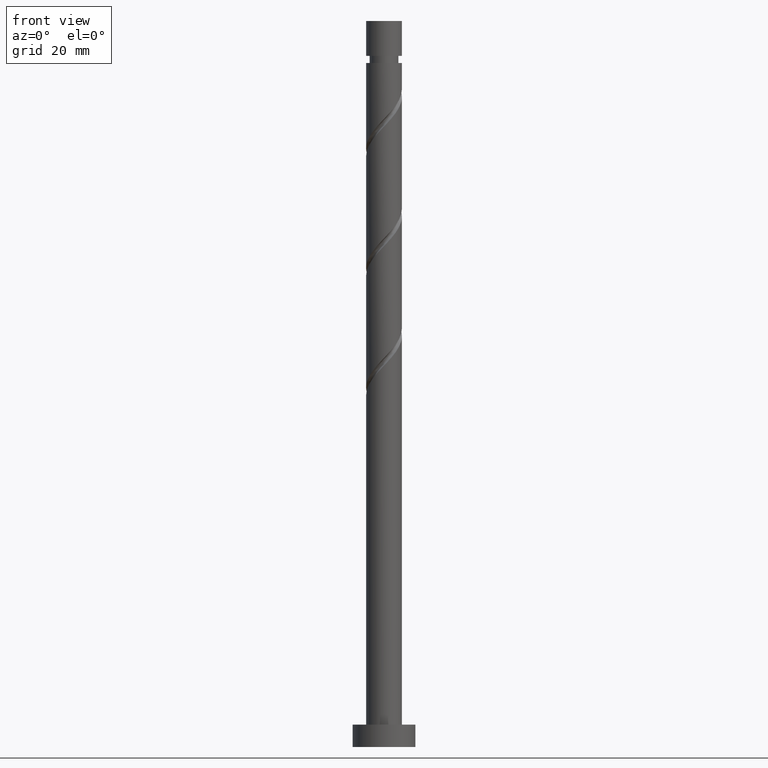
[diagram: clean part render]
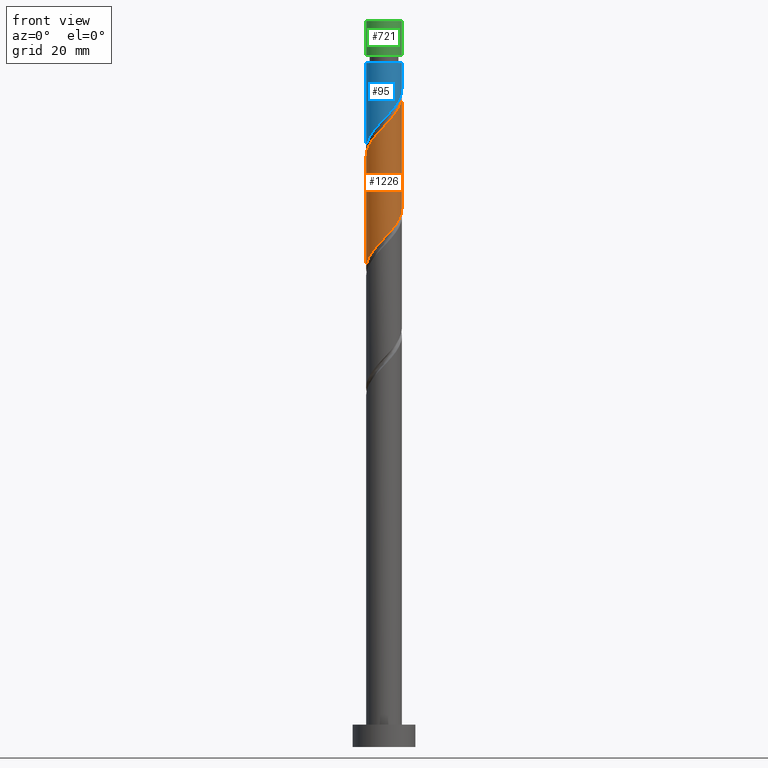
[diagram: same view with three faces highlighted in distinct colors, each labeled with its STEP entity id]
A machine part, front view with three faces highlighted in distinct colors.
Their STEP definitions:

[orange] entity #1226 — the highlighted cylindrical surface (edge-blend (fillet) strip) has radius 4 mm, axis along (-0, -0, -1).
#16 =( BOUNDED_CURVE ( )  B_SPLINE_CURVE ( 2, ( #1486, #857, #1578, #162, #841, #230, #770, #336, #1616, #1265, #988, #1495, #1399, #1251, #239, #1234, #488, #1636, #204, #737, #612, #999, #345, #871, #497 ),
 .UNSPECIFIED., .F., .T. ) 
 B_SPLINE_CURVE_WITH_KNOTS ( ( 3, 2, 2, 2, 2, 2, 2, 2, 2, 2, 2, 2, 3 ),
 ( 0.5545252162417513286, 0.5568181818181818787, 0.5681818181818181213, 0.5795454545454545858, 0.5909090909090908283, 0.6022727272727272929, 0.6136363636363636465, 0.6250000000000000000, 0.6363636363636363535, 0.6477272727272727071, 0.6590909090909091717, 0.6704545454545454142, 0.6795252162417515507 ),
 .UNSPECIFIED. ) 
 CURVE ( )  GEOMETRIC_REPRESENTATION_ITEM ( )  RATIONAL_B_SPLINE_CURVE ( ( 0.9061101570135622341, 0.9072237824201443424, 0.9090909090909219392, 0.8998376744372241776, 0.9090909090909219392, 0.8998376744372241776, 0.9090909090909219392, 0.8998376744372241776, 0.9090909090909219392, 0.8998376744372241776, 0.9090909090909219392, 0.8998376744372241776, 0.9090909090909219392, 0.8998376744372241776, 0.9090909090909219392, 0.8998376744372241776, 0.9090909090909219392, 0.8998376744372241776, 0.9090909090909219392, 0.8998376744372241776, 0.9090909090909219392, 0.8998376744372241776, 0.9090909090909219392, 0.9017048011080015524, 0.9061101570135624561 ) ) 
 REPRESENTATION_ITEM ( '' )  );
#55 = VERTEX_POINT ( 'NONE', #519 ) ;
#91 = AXIS2_PLACEMENT_3D ( 'NONE', #833, #313, #467 ) ;
#143 = CARTESIAN_POINT ( 'NONE',  ( 2.441275768804707980, -3.168623142730448095, 116.2597196818963425 ) ) ;
#157 = CARTESIAN_POINT ( 'NONE',  ( -4.000000000000000888, 3.769118817281110637E-15, 106.8061438581669051 ) ) ;
#162 = CARTESIAN_POINT ( 'NONE',  ( -3.960310248029106805, -0.8041752946599106666, 132.6233560455327165 ) ) ;
#204 = CARTESIAN_POINT ( 'NONE',  ( 2.788941361696814614, -2.867369191613936330, 141.7142651364418100 ) ) ;
#207 = DIRECTION ( 'NONE',  ( -0.000000000000000000, -0.000000000000000000, -1.000000000000000000 ) ) ;
#221 = VERTEX_POINT ( 'NONE', #1068 ) ;
#226 =( BOUNDED_CURVE ( )  B_SPLINE_CURVE ( 2, ( #827, #1583, #290, #1438, #282, #273, #836, #1208, #143, #957, #813, #1189, #1573, #1332, #1308, #703, #308, #1052, #673, #1182, #966, #1238, #1372, #1340, #743 ),
 .UNSPECIFIED., .F., .T. ) 
 B_SPLINE_CURVE_WITH_KNOTS ( ( 3, 2, 2, 2, 2, 2, 2, 2, 2, 2, 2, 2, 3 ),
 ( 0.5545252162417512176, 0.5568181818181817677, 0.5681818181818182323, 0.5795454545454545858, 0.5909090909090909394, 0.6022727272727272929, 0.6136363636363636465, 0.6250000000000000000, 0.6363636363636363535, 0.6477272727272727071, 0.6590909090909090606, 0.6704545454545454142, 0.6795252162417514397 ),
 .UNSPECIFIED. ) 
 CURVE ( )  GEOMETRIC_REPRESENTATION_ITEM ( )  RATIONAL_B_SPLINE_CURVE ( ( 0.9061101570135567940, 0.9072237824201390133, 0.9090909090909164991, 0.8998376744372188485, 0.9090909090909164991, 0.8998376744372188485, 0.9090909090909164991, 0.8998376744372188485, 0.9090909090909164991, 0.8998376744372188485, 0.9090909090909164991, 0.8998376744372188485, 0.9090909090909164991, 0.8998376744372188485, 0.9090909090909164991, 0.8998376744372188485, 0.9090909090909164991, 0.8998376744372188485, 0.9090909090909164991, 0.8998376744372188485, 0.9090909090909164991, 0.8998376744372188485, 0.9090909090909164991, 0.9017048011079962233, 0.9061101570135570160 ) ) 
 REPRESENTATION_ITEM ( '' )  );
#230 = CARTESIAN_POINT ( 'NONE',  ( -3.573327494404169524, -1.887348876843109702, 133.8354772576538778 ) ) ;
#239 = CARTESIAN_POINT ( 'NONE',  ( 0.7959899496852965717, -3.920000000000005702, 139.2900227121993737 ) ) ;
#273 = CARTESIAN_POINT ( 'NONE',  ( 3.573327494404164639, -1.887348876843107703, 118.0779015000781413 ) ) ;
#282 = CARTESIAN_POINT ( 'NONE',  ( 3.766818871216632836, -1.345762085751509129, 118.6839621061387362 ) ) ;
#290 = CARTESIAN_POINT ( 'NONE',  ( 3.993381233129879693, -0.2300137536889547418, 119.8960833182599686 ) ) ;
#308 = CARTESIAN_POINT ( 'NONE',  ( -1.868138386609203616, -3.536956172823910727, 111.4112348334114841 ) ) ;
#313 = DIRECTION ( 'NONE',  ( -0.000000000000000000, -0.000000000000000000, -1.000000000000000000 ) ) ;
#336 = CARTESIAN_POINT ( 'NONE',  ( -2.896854998579486917, -2.817620677520442651, 135.0475984697750960 ) ) ;
#344 = FACE_OUTER_BOUND ( 'NONE', #1050, .T. ) ;
#345 = CARTESIAN_POINT ( 'NONE',  ( 3.896423597087605994, -0.9043689247530174447, 144.1385075606841326 ) ) ;
#467 = DIRECTION ( 'NONE',  ( -1.000000000000000000, 0.000000000000000000, 0.000000000000000000 ) ) ;
#488 = CARTESIAN_POINT ( 'NONE',  ( 1.868138386609204726, -3.536956172823916056, 140.5021439243205919 ) ) ;
#497 = CARTESIAN_POINT ( 'NONE',  ( 4.000000000000005329, 2.557616340297881178E-15, 145.1072348995651282 ) ) ;
#519 = CARTESIAN_POINT ( 'NONE',  ( -4.000000000000005329, -2.752055009443334096E-15, 131.7739015662318138 ) ) ;
#536 = VERTEX_POINT ( 'NONE', #157 ) ;
#598 = EDGE_CURVE ( 'NONE', #1118, #536, #226, .T. ) ;
#612 = CARTESIAN_POINT ( 'NONE',  ( 3.483800894132681236, -1.965485011400590842, 142.9263863485630282 ) ) ;
#673 = CARTESIAN_POINT ( 'NONE',  ( -2.788941361696812393, -2.867369191613931001, 110.1991136212902660 ) ) ;
#703 = CARTESIAN_POINT ( 'NONE',  ( -1.359600862145591949, -3.805553922997103822, 112.0172954394721074 ) ) ;
#737 = CARTESIAN_POINT ( 'NONE',  ( 3.201206812320812833, -2.466379960577149699, 142.3203257425023764 ) ) ;
#743 = CARTESIAN_POINT ( 'NONE',  ( -4.000000000000000888, 3.769118817281110637E-15, 106.8061438581668909 ) ) ;
#746 = EDGE_CURVE ( 'NONE', #221, #1118, #1499, .T. ) ;
#770 = CARTESIAN_POINT ( 'NONE',  ( -3.235091246491827999, -2.352484777181776288, 134.4415378637145011 ) ) ;
#813 = CARTESIAN_POINT ( 'NONE',  ( 1.449682647155072557, -3.728058505782528620, 115.0475984697751244 ) ) ;
#827 = CARTESIAN_POINT ( 'NONE',  ( 4.000000000000000888, -4.606700776676913527E-15, 120.1394771915002480 ) ) ;
#833 = CARTESIAN_POINT ( 'NONE',  ( 0.000000000000000000, 0.000000000000000000, 162.0000000000000000 ) ) ;
#836 = CARTESIAN_POINT ( 'NONE',  ( 3.235091246491824002, -2.352484777181773179, 117.4718408940175181 ) ) ;
#841 = CARTESIAN_POINT ( 'NONE',  ( -3.766818871216639053, -1.345762085751509796, 133.2294166515933114 ) ) ;
#857 = CARTESIAN_POINT ( 'NONE',  ( -4.000000000000006217, -0.1151021060952867048, 131.8959995709500106 ) ) ;
#871 = CARTESIAN_POINT ( 'NONE',  ( 4.000000000000008882, -0.4581157095404841395, 144.6212749465938430 ) ) ;
#957 = CARTESIAN_POINT ( 'NONE',  ( 1.985696539029934149, -3.519625607940456202, 115.6536590758357192 ) ) ;
#966 = CARTESIAN_POINT ( 'NONE',  ( -3.483800894132676351, -1.965485011400587068, 108.9869924091690478 ) ) ;
#988 = CARTESIAN_POINT ( 'NONE',  ( -1.449682647155075665, -3.728058505782533505, 136.8657802879569658 ) ) ;
#999 = CARTESIAN_POINT ( 'NONE',  ( 3.766394975944548751, -1.464590062224029987, 143.5324469546236514 ) ) ;
#1021 = ORIENTED_EDGE ( 'NONE', *, *, #598, .F. ) ;
#1023 = EDGE_CURVE ( 'NONE', #55, #536, #1369, .T. ) ;
#1042 = ORIENTED_EDGE ( 'NONE', *, *, #746, .F. ) ;
#1050 = EDGE_LOOP ( 'NONE', ( #1042, #1471, #1316, #1021 ) ) ;
#1052 = CARTESIAN_POINT ( 'NONE',  ( -2.376675911072814618, -3.268358422650716744, 110.8051742273508609 ) ) ;
#1068 = CARTESIAN_POINT ( 'NONE',  ( 4.000000000000005329, 2.557616340297881178E-15, 145.1072348995651282 ) ) ;
#1094 = DIRECTION ( 'NONE',  ( -0.000000000000000000, -0.000000000000000000, -1.000000000000000000 ) ) ;
#1095 = VECTOR ( 'NONE', #207, 1000.000000000000000 ) ;
#1118 = VERTEX_POINT ( 'NONE', #1506 ) ;
#1182 = CARTESIAN_POINT ( 'NONE',  ( -3.201206812320810169, -2.466379960577145702, 109.5930530152296569 ) ) ;
#1189 = CARTESIAN_POINT ( 'NONE',  ( 0.9136687552802118528, -3.936491403624601926, 114.4415378637145579 ) ) ;
#1208 = CARTESIAN_POINT ( 'NONE',  ( 2.896854998579484253, -2.817620677520439987, 116.8657802879569516 ) ) ;
#1218 = VECTOR ( 'NONE', #1094, 1000.000000000000000 ) ;
#1226 = ADVANCED_FACE ( 'NONE', ( #344 ), #1395, .T. ) ;
#1234 = CARTESIAN_POINT ( 'NONE',  ( 1.359600862145592615, -3.805553922997109595, 139.8960833182599401 ) ) ;
#1238 = CARTESIAN_POINT ( 'NONE',  ( -3.766394975944543422, -1.464590062224028433, 108.3809318031084388 ) ) ;
#1245 = CARTESIAN_POINT ( 'NONE',  ( 4.000000000000000000, 4.898587196589412829E-16, 162.0000000000000000 ) ) ;
#1251 = CARTESIAN_POINT ( 'NONE',  ( 0.2323790372250007230, -4.034446077002900921, 138.6839621061386936 ) ) ;
#1258 = EDGE_CURVE ( 'NONE', #55, #221, #16, .T. ) ;
#1265 = CARTESIAN_POINT ( 'NONE',  ( -1.985696539029938146, -3.519625607940459311, 136.2597196818963425 ) ) ;
#1308 = CARTESIAN_POINT ( 'NONE',  ( -0.7959899496852971268, -3.919999999999999929, 112.6233560455326881 ) ) ;
#1316 = ORIENTED_EDGE ( 'NONE', *, *, #1023, .T. ) ;
#1332 = CARTESIAN_POINT ( 'NONE',  ( -0.2323790372250022218, -4.034446077002896480, 113.2294166515933256 ) ) ;
#1340 = CARTESIAN_POINT ( 'NONE',  ( -4.000000000000002665, -0.4581157095404838620, 107.2921038111382330 ) ) ;
#1369 = LINE ( 'NONE', #1619, #1095 ) ;
#1372 = CARTESIAN_POINT ( 'NONE',  ( -3.896423597087600665, -0.9043689247530153352, 107.7748711970478439 ) ) ;
#1395 = CYLINDRICAL_SURFACE ( 'NONE', #91, 4.000000000000000000 ) ;
#1399 = CARTESIAN_POINT ( 'NONE',  ( -0.3406448590276058841, -3.985468740313755642, 138.0779015000781271 ) ) ;
#1438 = CARTESIAN_POINT ( 'NONE',  ( 3.960310248029102365, -0.8041752946599112217, 119.2900227121993595 ) ) ;
#1471 = ORIENTED_EDGE ( 'NONE', *, *, #1258, .F. ) ;
#1486 = CARTESIAN_POINT ( 'NONE',  ( -4.000000000000005329, -2.752055009443334096E-15, 131.7739015662318138 ) ) ;
#1495 = CARTESIAN_POINT ( 'NONE',  ( -0.9136687552802127410, -3.936491403624608143, 137.4718408940175038 ) ) ;
#1499 = LINE ( 'NONE', #1245, #1218 ) ;
#1506 = CARTESIAN_POINT ( 'NONE',  ( 4.000000000000000888, -4.606700776676913527E-15, 120.1394771915002480 ) ) ;
#1573 = CARTESIAN_POINT ( 'NONE',  ( 0.3406448590276037192, -3.985468740313750313, 113.8354772576538920 ) ) ;
#1578 = CARTESIAN_POINT ( 'NONE',  ( -3.993381233129885466, -0.2300137536889534373, 132.0172954394720932 ) ) ;
#1583 = CARTESIAN_POINT ( 'NONE',  ( 4.000000000000000000, -0.1151021060952871489, 120.0173791867820370 ) ) ;
#1616 = CARTESIAN_POINT ( 'NONE',  ( -2.441275768804712420, -3.168623142730450759, 135.6536590758357761 ) ) ;
#1619 = CARTESIAN_POINT ( 'NONE',  ( -4.000000000000000000, 0.000000000000000000, 162.0000000000000000 ) ) ;
#1636 = CARTESIAN_POINT ( 'NONE',  ( 2.376675911072817282, -3.268358422650720740, 141.1082045303811299 ) ) ;

[blue] entity #95 — the highlighted cylindrical surface (edge-blend (fillet) strip) has radius 4 mm, axis along (-0, -0, -1).
#7 = CARTESIAN_POINT ( 'NONE',  ( -3.483800894132676351, -1.965485011400587068, 135.6536590758357477 ) ) ;
#12 = VECTOR ( 'NONE', #80, 1000.000000000000000 ) ;
#50 = CARTESIAN_POINT ( 'NONE',  ( 0.000000000000000000, 0.000000000000000000, 152.6233560455327165 ) ) ;
#74 = DIRECTION ( 'NONE',  ( -0.000000000000000000, -0.000000000000000000, -1.000000000000000000 ) ) ;
#80 = DIRECTION ( 'NONE',  ( -0.000000000000000000, -0.000000000000000000, -1.000000000000000000 ) ) ;
#95 = ADVANCED_FACE ( 'NONE', ( #367 ), #1432, .T. ) ;
#127 = CARTESIAN_POINT ( 'NONE',  ( 0.000000000000000000, 0.000000000000000000, 162.0000000000000000 ) ) ;
#130 = VERTEX_POINT ( 'NONE', #1413 ) ;
#165 = CARTESIAN_POINT ( 'NONE',  ( -4.000000000000000888, -0.4581157095404921331, 133.9587704778048760 ) ) ;
#186 = CARTESIAN_POINT ( 'NONE',  ( -0.7959899496852971268, -3.919999999999999929, 139.2900227121993169 ) ) ;
#218 = ORIENTED_EDGE ( 'NONE', *, *, #1626, .T. ) ;
#250 = CARTESIAN_POINT ( 'NONE',  ( -3.201206812320810169, -2.466379960577145702, 136.2597196818963141 ) ) ;
#252 = CARTESIAN_POINT ( 'NONE',  ( -3.766394975944543422, -1.464590062224028433, 135.0475984697751244 ) ) ;
#264 = CARTESIAN_POINT ( 'NONE',  ( 3.766818871216632836, -1.345762085751509129, 145.3506287728054076 ) ) ;
#279 = CARTESIAN_POINT ( 'NONE',  ( 0.9136687552802118528, -3.936491403624601926, 141.1082045303811867 ) ) ;
#287 = EDGE_CURVE ( 'NONE', #347, #1529, #632, .T. ) ;
#304 = ORIENTED_EDGE ( 'NONE', *, *, #1659, .F. ) ;
#347 = VERTEX_POINT ( 'NONE', #1465 ) ;
#367 = FACE_OUTER_BOUND ( 'NONE', #1283, .T. ) ;
#438 = AXIS2_PLACEMENT_3D ( 'NONE', #127, #1273, #646 ) ;
#442 = EDGE_CURVE ( 'NONE', #347, #130, #1343, .T. ) ;
#475 = CARTESIAN_POINT ( 'NONE',  ( 4.000000000000000000, 9.572365250237742804E-16, 146.8061438581669051 ) ) ;
#514 = ORIENTED_EDGE ( 'NONE', *, *, #442, .F. ) ;
#543 = CARTESIAN_POINT ( 'NONE',  ( 2.896854998579484253, -2.817620677520439987, 143.5324469546236230 ) ) ;
#570 = LINE ( 'NONE', #1500, #12 ) ;
#597 = CARTESIAN_POINT ( 'NONE',  ( -2.376675911072814618, -3.268358422650716744, 137.4718408940175038 ) ) ;
#632 = CIRCLE ( 'NONE', #1059, 3.999999999999993339 ) ;
#646 = DIRECTION ( 'NONE',  ( -1.000000000000000000, 0.000000000000000000, 0.000000000000000000 ) ) ;
#700 = DIRECTION ( 'NONE',  ( -0.000000000000000000, -0.000000000000000000, -1.000000000000000000 ) ) ;
#717 = CARTESIAN_POINT ( 'NONE',  ( -1.359600862145591949, -3.805553922997103822, 138.6839621061386936 ) ) ;
#752 = ORIENTED_EDGE ( 'NONE', *, *, #287, .T. ) ;
#807 =( BOUNDED_CURVE ( )  B_SPLINE_CURVE ( 2, ( #475, #1375, #1044, #1153, #264, #1349, #1228, #543, #1060, #1028, #1562, #279, #1261, #969, #186, #717, #1483, #597, #1106, #250, #7, #252, #1581, #165, #1129 ),
 .UNSPECIFIED., .F., .T. ) 
 B_SPLINE_CURVE_WITH_KNOTS ( ( 3, 2, 2, 2, 2, 2, 2, 2, 2, 2, 2, 2, 3 ),
 ( 0.3045252162417514397, 0.3068181818181818232, 0.3181818181818181768, 0.3295454545454545303, 0.3409090909090908839, 0.3522727272727272929, 0.3636363636363636465, 0.3750000000000000000, 0.3863636363636363535, 0.3977272727272727071, 0.4090909090909091161, 0.4204545454545454697, 0.4295252162417513286 ),
 .UNSPECIFIED. ) 
 CURVE ( )  GEOMETRIC_REPRESENTATION_ITEM ( )  RATIONAL_B_SPLINE_CURVE ( ( 0.9061101570135570160, 0.9072237824201391243, 0.9090909090909164991, 0.8998376744372188485, 0.9090909090909164991, 0.8998376744372188485, 0.9090909090909164991, 0.8998376744372188485, 0.9090909090909164991, 0.8998376744372188485, 0.9090909090909164991, 0.8998376744372188485, 0.9090909090909164991, 0.8998376744372188485, 0.9090909090909164991, 0.8998376744372188485, 0.9090909090909164991, 0.8998376744372188485, 0.9090909090909164991, 0.8998376744372188485, 0.9090909090909164991, 0.8998376744372188485, 0.9090909090909164991, 0.9017048011079963343, 0.9061101570135567940 ) ) 
 REPRESENTATION_ITEM ( '' )  );
#809 = DIRECTION ( 'NONE',  ( -1.000000000000000000, 0.000000000000000000, 0.000000000000000000 ) ) ;
#969 = CARTESIAN_POINT ( 'NONE',  ( -0.2323790372250022218, -4.034446077002896480, 139.8960833182599117 ) ) ;
#978 = CARTESIAN_POINT ( 'NONE',  ( -4.000000000000000000, -1.824732125826569623E-15, 133.4728105248335908 ) ) ;
#997 = CARTESIAN_POINT ( 'NONE',  ( 4.000000000000000000, 4.898587196589412829E-16, 162.0000000000000000 ) ) ;
#1028 = CARTESIAN_POINT ( 'NONE',  ( 1.985696539029934149, -3.519625607940456202, 142.3203257425024049 ) ) ;
#1044 = CARTESIAN_POINT ( 'NONE',  ( 3.993381233129879693, -0.2300137536889547418, 146.5627499849265973 ) ) ;
#1059 = AXIS2_PLACEMENT_3D ( 'NONE', #50, #700, #809 ) ;
#1060 = CARTESIAN_POINT ( 'NONE',  ( 2.441275768804707980, -3.168623142730448095, 142.9263863485629997 ) ) ;
#1106 = CARTESIAN_POINT ( 'NONE',  ( -2.788941361696812393, -2.867369191613931001, 136.8657802879569658 ) ) ;
#1129 = CARTESIAN_POINT ( 'NONE',  ( -4.000000000000000000, -1.824732125826569623E-15, 133.4728105248335908 ) ) ;
#1153 = CARTESIAN_POINT ( 'NONE',  ( 3.960310248029102365, -0.8041752946599112217, 145.9566893788660877 ) ) ;
#1228 = CARTESIAN_POINT ( 'NONE',  ( 3.235091246491824002, -2.352484777181773179, 144.1385075606842179 ) ) ;
#1261 = CARTESIAN_POINT ( 'NONE',  ( 0.3406448590276037192, -3.985468740313750313, 140.5021439243205634 ) ) ;
#1273 = DIRECTION ( 'NONE',  ( -0.000000000000000000, -0.000000000000000000, -1.000000000000000000 ) ) ;
#1283 = EDGE_LOOP ( 'NONE', ( #514, #752, #218, #304 ) ) ;
#1343 = LINE ( 'NONE', #997, #1350 ) ;
#1349 = CARTESIAN_POINT ( 'NONE',  ( 3.573327494404164639, -1.887348876843107703, 144.7445681667448696 ) ) ;
#1350 = VECTOR ( 'NONE', #74, 1000.000000000000000 ) ;
#1375 = CARTESIAN_POINT ( 'NONE',  ( 4.000000000000000000, -0.1151021060952955033, 146.6840458534485947 ) ) ;
#1413 = CARTESIAN_POINT ( 'NONE',  ( 4.000000000000000000, 9.572365250237742804E-16, 146.8061438581669051 ) ) ;
#1432 = CYLINDRICAL_SURFACE ( 'NONE', #438, 4.000000000000000000 ) ;
#1465 = CARTESIAN_POINT ( 'NONE',  ( 3.999999999999993339, 4.898587196589407898E-16, 152.6233560455327165 ) ) ;
#1483 = CARTESIAN_POINT ( 'NONE',  ( -1.868138386609203616, -3.536956172823910727, 138.0779015000781271 ) ) ;
#1500 = CARTESIAN_POINT ( 'NONE',  ( -4.000000000000000000, 0.000000000000000000, 162.0000000000000000 ) ) ;
#1529 = VERTEX_POINT ( 'NONE', #1593 ) ;
#1562 = CARTESIAN_POINT ( 'NONE',  ( 1.449682647155072557, -3.728058505782528620, 141.7142651364418100 ) ) ;
#1581 = CARTESIAN_POINT ( 'NONE',  ( -3.896423597087600665, -0.9043689247530153352, 134.4415378637145295 ) ) ;
#1593 = CARTESIAN_POINT ( 'NONE',  ( -3.999999999999993339, 0.000000000000000000, 152.6233560455327165 ) ) ;
#1626 = EDGE_CURVE ( 'NONE', #1529, #1655, #570, .T. ) ;
#1655 = VERTEX_POINT ( 'NONE', #978 ) ;
#1659 = EDGE_CURVE ( 'NONE', #130, #1655, #807, .T. ) ;

[green] entity #721 — the highlighted cylindrical surface (edge-blend (fillet) strip) has radius 4 mm, axis along (-0, -0, -1).
#18 = ORIENTED_EDGE ( 'NONE', *, *, #1187, .F. ) ;
#54 = CARTESIAN_POINT ( 'NONE',  ( -4.000000000000000000, 0.000000000000000000, 162.0000000000000000 ) ) ;
#206 = CARTESIAN_POINT ( 'NONE',  ( 0.000000000000000000, 0.000000000000000000, 154.2233560455326824 ) ) ;
#216 = DIRECTION ( 'NONE',  ( -1.000000000000000000, 0.000000000000000000, 0.000000000000000000 ) ) ;
#241 = VERTEX_POINT ( 'NONE', #1335 ) ;
#373 = DIRECTION ( 'NONE',  ( 1.000000000000000000, 0.000000000000000000, 0.000000000000000000 ) ) ;
#381 = CARTESIAN_POINT ( 'NONE',  ( 0.000000000000000000, 0.000000000000000000, 162.0000000000000000 ) ) ;
#411 = CARTESIAN_POINT ( 'NONE',  ( -4.000000000000000000, 0.000000000000000000, 162.0000000000000000 ) ) ;
#413 = DIRECTION ( 'NONE',  ( -0.000000000000000000, -0.000000000000000000, -1.000000000000000000 ) ) ;
#472 = DIRECTION ( 'NONE',  ( -1.000000000000000000, 0.000000000000000000, 0.000000000000000000 ) ) ;
#480 = VECTOR ( 'NONE', #413, 1000.000000000000000 ) ;
#509 = VECTOR ( 'NONE', #1371, 1000.000000000000000 ) ;
#529 = AXIS2_PLACEMENT_3D ( 'NONE', #381, #533, #373 ) ;
#533 = DIRECTION ( 'NONE',  ( 0.000000000000000000, 0.000000000000000000, 1.000000000000000000 ) ) ;
#603 = ORIENTED_EDGE ( 'NONE', *, *, #1092, .F. ) ;
#615 = CIRCLE ( 'NONE', #1569, 3.999999999999993339 ) ;
#633 = ORIENTED_EDGE ( 'NONE', *, *, #819, .T. ) ;
#708 = CARTESIAN_POINT ( 'NONE',  ( 4.000000000000000000, 4.898587196589412829E-16, 162.0000000000000000 ) ) ;
#713 = CYLINDRICAL_SURFACE ( 'NONE', #1383, 4.000000000000000000 ) ;
#721 = ADVANCED_FACE ( 'NONE', ( #1230 ), #713, .T. ) ;
#727 = LINE ( 'NONE', #708, #509 ) ;
#731 = LINE ( 'NONE', #54, #480 ) ;
#794 = VERTEX_POINT ( 'NONE', #975 ) ;
#819 = EDGE_CURVE ( 'NONE', #1487, #1405, #731, .T. ) ;
#975 = CARTESIAN_POINT ( 'NONE',  ( 4.000000000000000000, 4.898587196589412829E-16, 162.0000000000000000 ) ) ;
#994 = CARTESIAN_POINT ( 'NONE',  ( 0.000000000000000000, 0.000000000000000000, 162.0000000000000000 ) ) ;
#1019 = CIRCLE ( 'NONE', #529, 4.000000000000000000 ) ;
#1092 = EDGE_CURVE ( 'NONE', #794, #241, #727, .T. ) ;
#1187 = EDGE_CURVE ( 'NONE', #241, #1405, #615, .T. ) ;
#1230 = FACE_OUTER_BOUND ( 'NONE', #1553, .T. ) ;
#1304 = EDGE_CURVE ( 'NONE', #1487, #794, #1019, .T. ) ;
#1335 = CARTESIAN_POINT ( 'NONE',  ( 3.999999999999993339, 4.898587196589407898E-16, 154.2233560455326824 ) ) ;
#1371 = DIRECTION ( 'NONE',  ( -0.000000000000000000, -0.000000000000000000, -1.000000000000000000 ) ) ;
#1383 = AXIS2_PLACEMENT_3D ( 'NONE', #994, #1480, #472 ) ;
#1405 = VERTEX_POINT ( 'NONE', #1615 ) ;
#1466 = ORIENTED_EDGE ( 'NONE', *, *, #1304, .F. ) ;
#1480 = DIRECTION ( 'NONE',  ( -0.000000000000000000, -0.000000000000000000, -1.000000000000000000 ) ) ;
#1487 = VERTEX_POINT ( 'NONE', #411 ) ;
#1553 = EDGE_LOOP ( 'NONE', ( #603, #1466, #633, #18 ) ) ;
#1569 = AXIS2_PLACEMENT_3D ( 'NONE', #206, #1629, #216 ) ;
#1615 = CARTESIAN_POINT ( 'NONE',  ( -3.999999999999993339, 0.000000000000000000, 154.2233560455326824 ) ) ;
#1629 = DIRECTION ( 'NONE',  ( -0.000000000000000000, -0.000000000000000000, -1.000000000000000000 ) ) ;